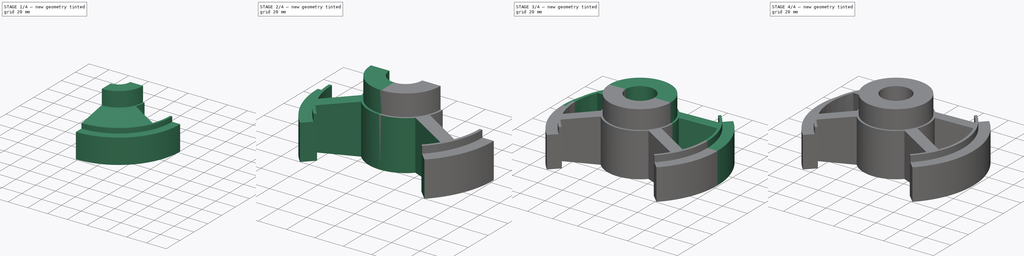
[diagram: build sequence overview — one tinted view per stage of 4, left to right]
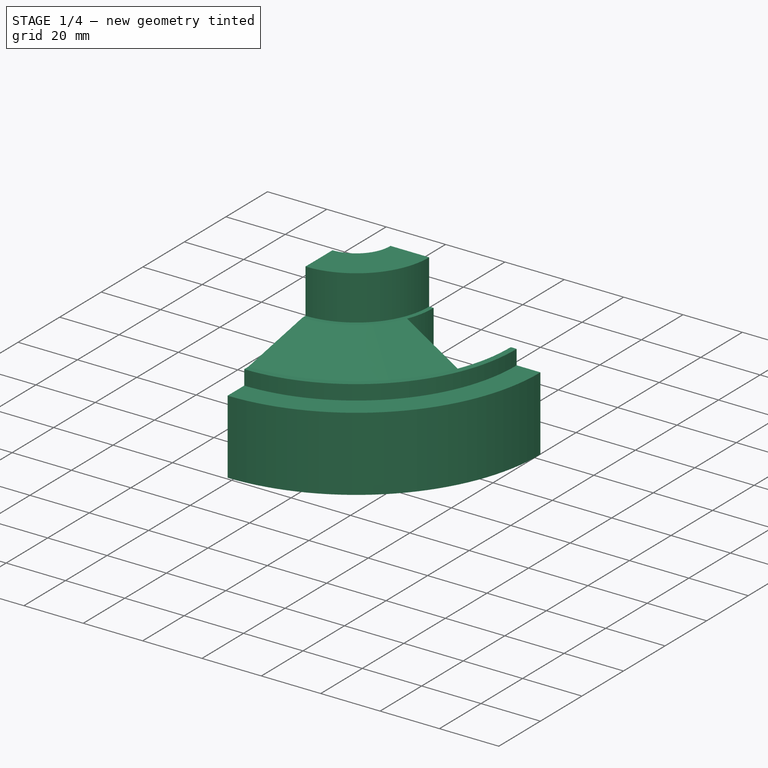
[diagram: stage 1 of 4 — iso view after this stage's code; geometry added in this stage tinted green]
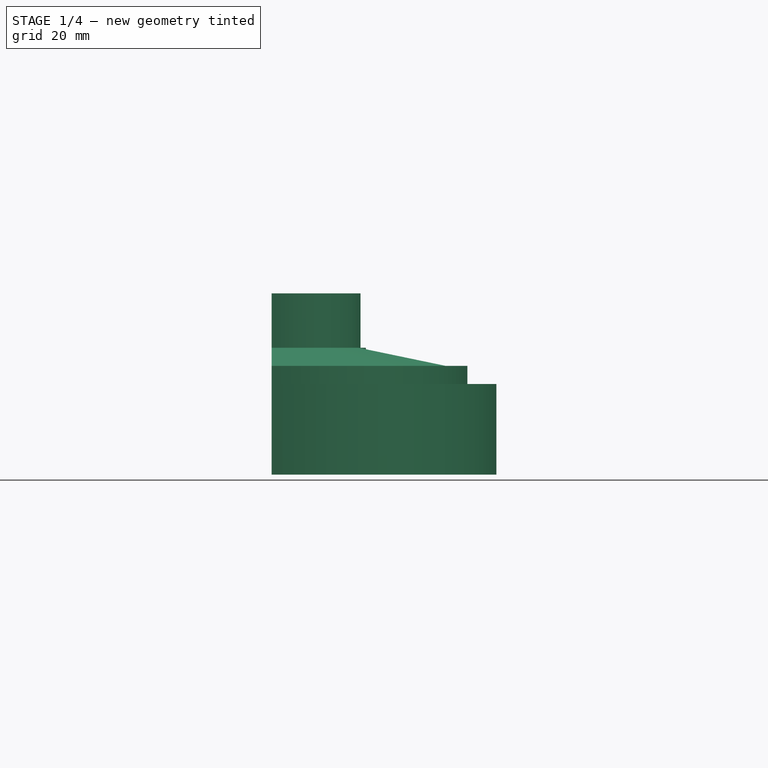
[diagram: stage 1 of 4 — front view after this stage's code; geometry added in this stage tinted green]
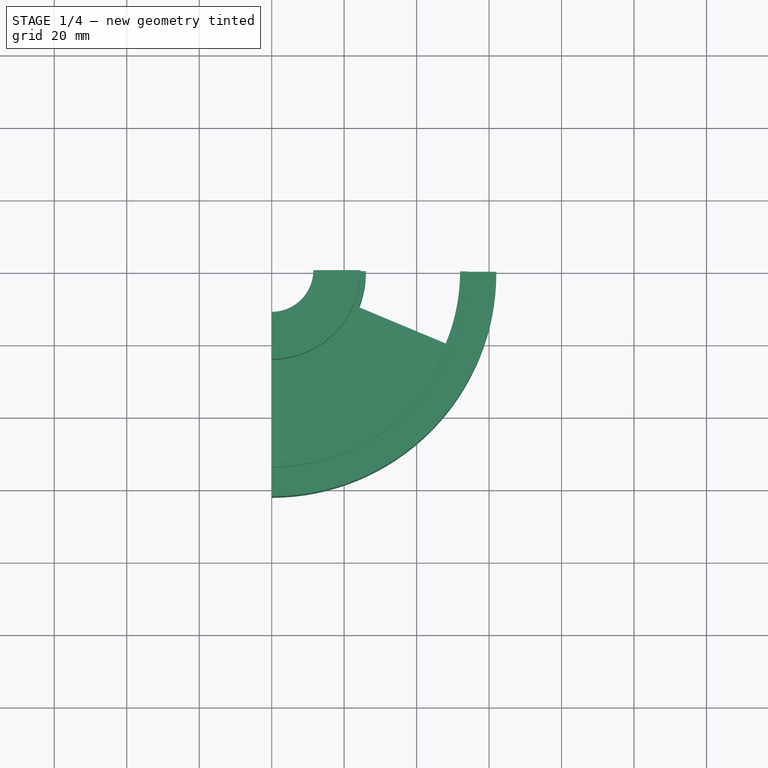
[diagram: stage 1 of 4 — top view after this stage's code; geometry added in this stage tinted green]
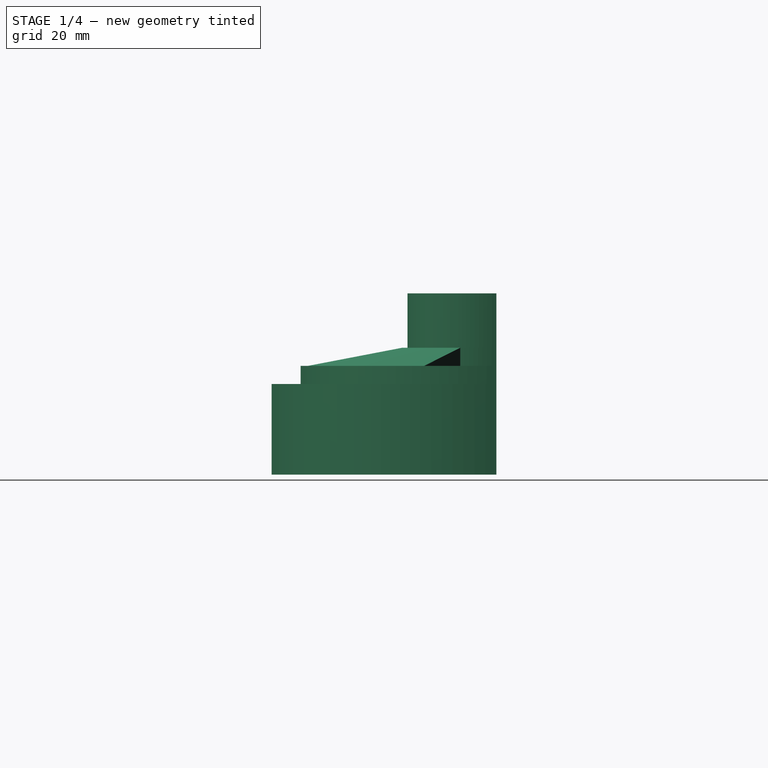
[diagram: stage 1 of 4 — right view after this stage's code; geometry added in this stage tinted green]
FCSTD DOCUMENT  (FreeCAD 0.17R10423 (Git))
Label: 7thExampleSol2
License: CreativeCommons Attribution-NonCommercial
LicenseURL: http://creativecommons.org/licenses/by-nc/4.0/
objects: PartDesign::Body×5, Sketcher::SketchObject×3, Part::Mirroring×3, PartDesign::Boolean×3, PartDesign::Pocket×2, PartDesign::Revolution×1, Part::FeaturePython×1
note: 21 computed .brp shape members not serialized (recipe doc carries the construction recipe); baked Part::Feature solids carry a one-line shape summary decoded from their .brp

FEATURE [Sketcher::SketchObject] Sketch
  MapMode = 5
  Placement = pos=(0,0,0) rot=(1,0,0;1.5708rad)
  Support = -> [XZ_Plane]
  sketch-geometry (10):
    g0: LineSegment StartX=11.5 StartY=0 StartZ=0 EndX=62 EndY=0 EndZ=0
    g1: LineSegment StartX=62 StartY=0 StartZ=0 EndX=62 EndY=25 EndZ=0
    g2: LineSegment StartX=62 StartY=25 StartZ=0 EndX=54 EndY=25 EndZ=0
    g3: LineSegment StartX=54 StartY=25 StartZ=0 EndX=54 EndY=30 EndZ=0
    g4: LineSegment StartX=54 StartY=30 StartZ=0 EndX=52 EndY=30 EndZ=0
    g5: LineSegment StartX=52 StartY=30 StartZ=0 EndX=26 EndY=35 EndZ=0
    g6: LineSegment StartX=26 StartY=35 StartZ=0 EndX=24.5 EndY=35 EndZ=0
    g7: LineSegment StartX=24.5 StartY=35 StartZ=0 EndX=24.5 EndY=50 EndZ=0
    g8: LineSegment StartX=24.5 StartY=50 StartZ=0 EndX=11.5 EndY=50 EndZ=0
    g9: LineSegment StartX=11.5 StartY=50 StartZ=0 EndX=11.5 EndY=0 EndZ=0
  constraints (30):
    c: PointOnObject(g0,g-1)
    c: PointOnObject(g0,g-1)
    c: Coincident(g0,g1)
    c: Vertical(g1)
    c: Coincident(g1,g2)
    c: Horizontal(g2)
    c: Coincident(g2,g3)
    c: Vertical(g3)
    c: Coincident(g3,g4)
    c: Coincident(g4,g5)
    c: Coincident(g6,g7)
    c: Vertical(g7)
    c: Coincident(g7,g8)
    c: Horizontal(g8)
    c: Coincident(g8,g9)
    c: Coincident(g9,g0)
    c: Vertical(g9)
    c: Horizontal(g4)
    c: Horizontal(g6)
    c: Distance(g-1,g1) = 62
    c: Distance(g1,g0) = 25
    c: Distance(g-1,g8) = 50
    c: Distance(g7) = 15
    c: Distance(g0,g4) = 30
    c: DistanceX(g-2,g0) = 11.5
    c: Distance(g-1,g3) = 54
    c: Distance(g4) = 2
    c: Distance(g-1,g7) = 24.5
    c: Coincident(g5,g6)
    c: DistanceX(g-1,g5) = 26
FEATURE [PartDesign::Revolution] Revolution
  Angle = 90
  Axis = (0,0,1)
  Base = (0,0,0)
  Placement = pos=(0,0,0) rot=(1,0,0;1.5708rad)
  Profile = -> Sketch
  ReferenceAxis = -> Sketch [V_Axis]
  Reversed = true
FEATURE [Sketcher::SketchObject] Sketch001
  ExternalGeometry = -> [Revolution]
  MapMode = 5
  Placement = pos=(0,0,0) rot=(0,1,0;3.14159rad)
  Support = -> [XY_Plane]
  sketch-geometry (4):
    g0: LineSegment StartX=-52 StartY=0 StartZ=0 EndX=-26 EndY=0 EndZ=0
    g1: LineSegment StartX=-24.0209 StartY=-9.94977 StartZ=0 EndX=-48.0417 EndY=-19.8995 EndZ=0
    g2: ArcOfCircle CenterX=0 CenterY=0 CenterZ=0 NormalX=0 NormalY=0 NormalZ=1 Radius=52 StartAngle=3.14159 EndAngle=3.53429
    g3: ArcOfCircle CenterX=0 CenterY=0 CenterZ=0 NormalX=0 NormalY=0 NormalZ=1 Radius=26 StartAngle=3.14159 EndAngle=3.53429
  constraints (11):
    c: Horizontal(g0)
    c: Coincident(g2,g1)
    c: Coincident(g2,g0)
    c: Coincident(g3,g1)
    c: Coincident(g3,g0)
    c: Coincident(g2,g3)
    c: Coincident(g2,g-3)
    c: Coincident(g0,g-3)
    c: Coincident(g0,g-4)
    c: Angle(g0,g1) = 0.392699
    c: PointOnObject(g-1,g1)
FEATURE [PartDesign::Pocket] Pocket
  BaseFeature = -> Revolution
  Length = 5
  Placement = pos=(0,0,0) rot=(1,0,0;1.5708rad)
  Profile = -> Sketch001
  Type = 1
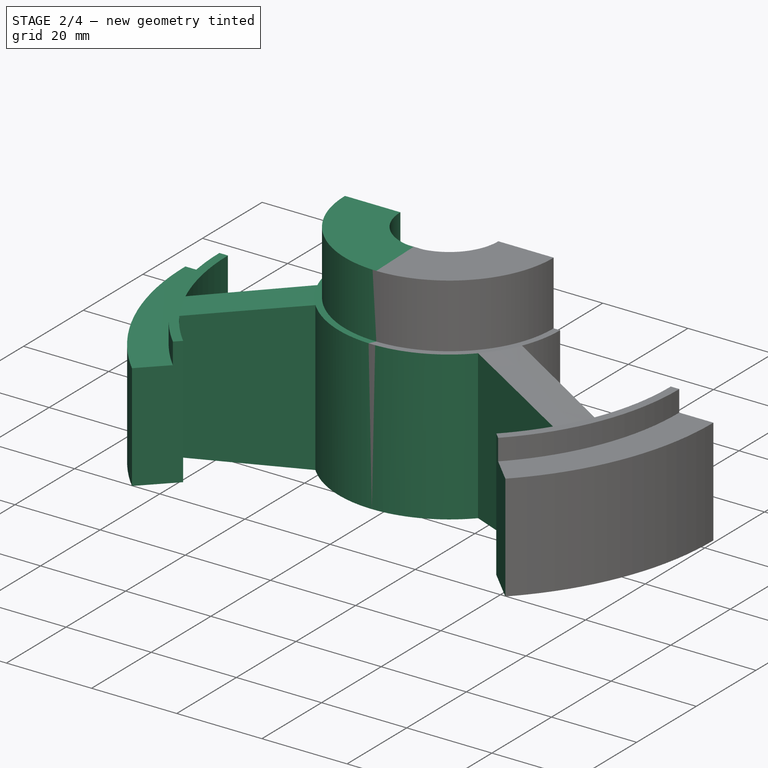
[diagram: stage 2 of 4 — iso view after this stage's code; geometry added in this stage tinted green]
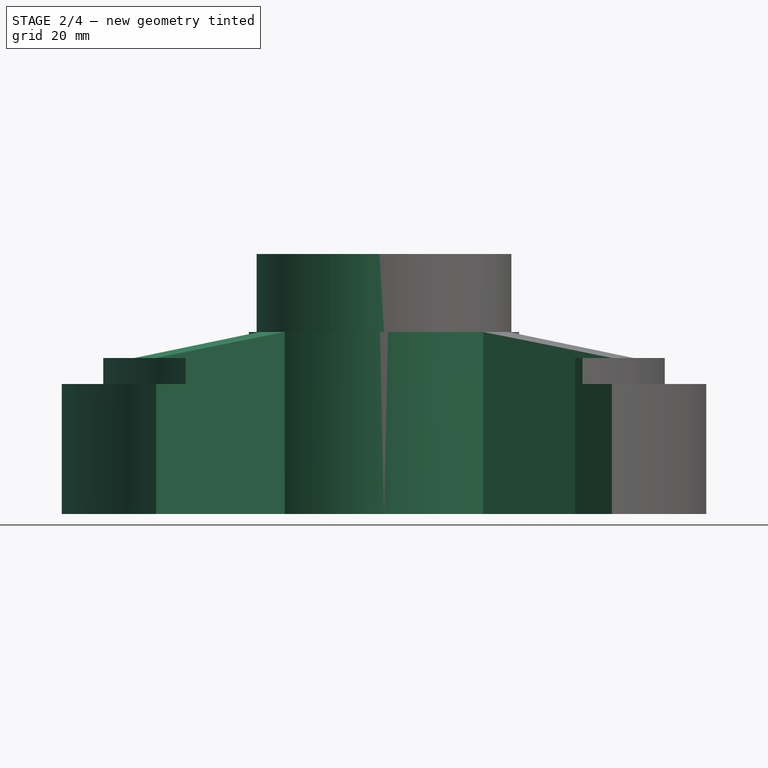
[diagram: stage 2 of 4 — front view after this stage's code; geometry added in this stage tinted green]
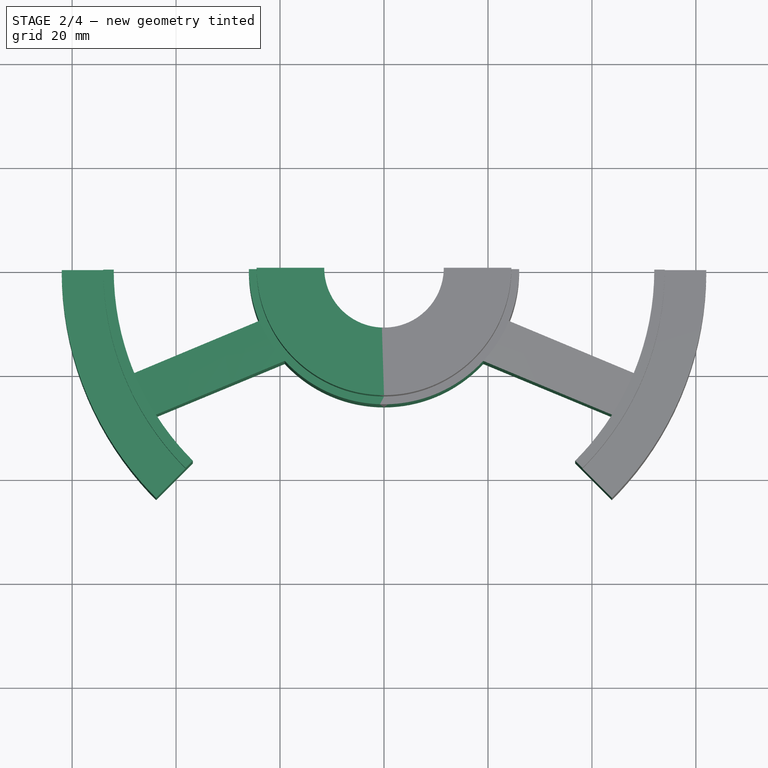
[diagram: stage 2 of 4 — top view after this stage's code; geometry added in this stage tinted green]
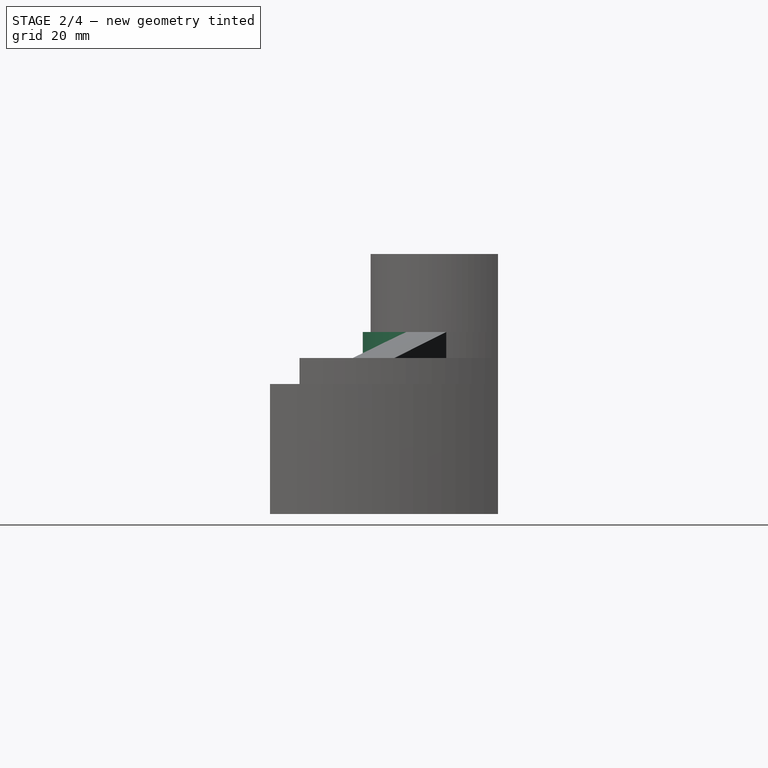
[diagram: stage 2 of 4 — right view after this stage's code; geometry added in this stage tinted green]
FEATURE [Sketcher::SketchObject] Sketch002
  ExternalGeometry = -> [Pocket]
  MapMode = 5
  Support = -> [XY_Plane]
  sketch-geometry (6):
    g0: LineSegment StartX=-0.0001 StartY=-26 StartZ=0 EndX=-0.0001 EndY=-70 EndZ=0
    g1: ArcOfCircle CenterX=0 CenterY=0 CenterZ=0 NormalX=0 NormalY=0 NormalZ=1 Radius=70 StartAngle=4.71239 EndAngle=5.49779
    g2: LineSegment StartX=49.4975 StartY=-49.4975 StartZ=0 EndX=36.7696 EndY=-36.7696 EndZ=0
    g3: ArcOfCircle CenterX=0 CenterY=0 CenterZ=0 NormalX=0 NormalY=0 NormalZ=1 Radius=26 StartAngle=4.71239 EndAngle=5.53702
    g4: LineSegment StartX=19.0917 StartY=-17.6496 StartZ=0 EndX=43.8726 EndY=-27.9141 EndZ=0
    g5: ArcOfCircle CenterX=0 CenterY=0 CenterZ=0 NormalX=0 NormalY=0 NormalZ=1 Radius=52 StartAngle=5.49779 EndAngle=5.71653
  constraints (18):
    c: Radius(g1) = 70
    c: Coincident(g3,g4)
    c: Coincident(g2,g5)
    c: Coincident(g1,g3)
    c: Coincident(g1,g5)
    c: Coincident(g4,g5)
    c: Distance(g2) = 18
    c: Distance(g0) = 44
    c: Coincident(g3,g0)
    c: Coincident(g0,g1)
    c: Coincident(g2,g1)
    c: Distance(g-5,g4) = 9
    c: Parallel(g4,g-5)
    c: Coincident(g1,g-3)
    c: Angle(g-1,g2) = 2.35619
    c: PointOnObject(g-1,g2)
    c: Vertical(g0)
    c: Distance(g-1,g0) = 0.0001
FEATURE [PartDesign::Pocket] Pocket001
  BaseFeature = -> Pocket
  Length = 41
  Placement = pos=(0,0,0) rot=(1,0,0;1.5708rad)
  Profile = -> Sketch002
  Reversed = true
  Type = 0
FEATURE [PartDesign::Body] Body
  Group = -> [Sketch,Revolution,Sketch001,Pocket,Sketch002,Pocket001]
  Origin = -> BodyOrigin
  Tip = -> Pocket001
FEATURE [Part::Mirroring] Part__Mirroring  label="Pocket001 (Mirror #1)"
  Base = (0,0,0)
  Normal = (1,0,0)
  Source = -> Pocket001
FEATURE [PartDesign::Boolean] Boolean
  BaseFeature = -> Part__Mirroring
  Bodies = -> [Body]
  Type = 0
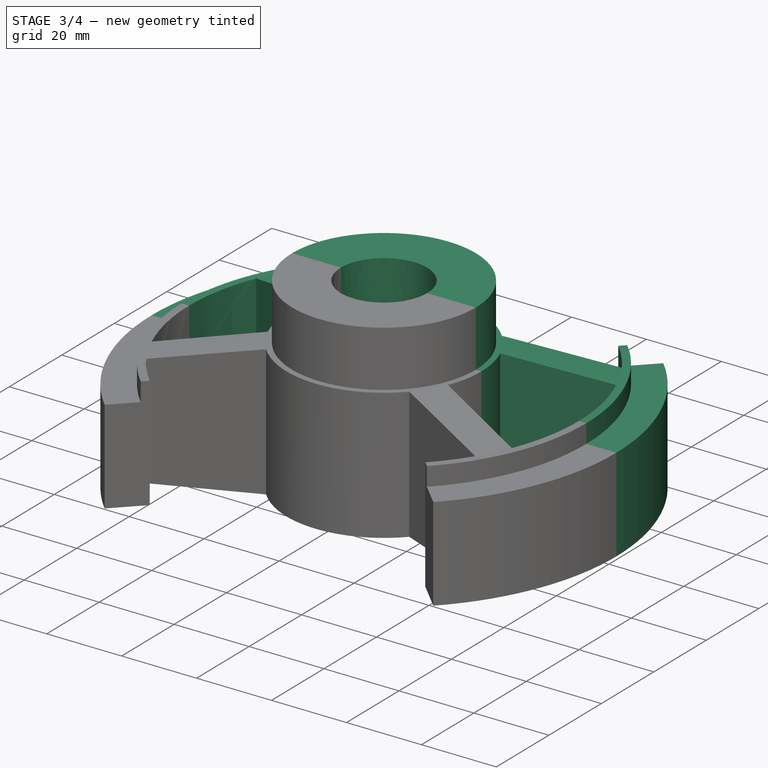
[diagram: stage 3 of 4 — iso view after this stage's code; geometry added in this stage tinted green]
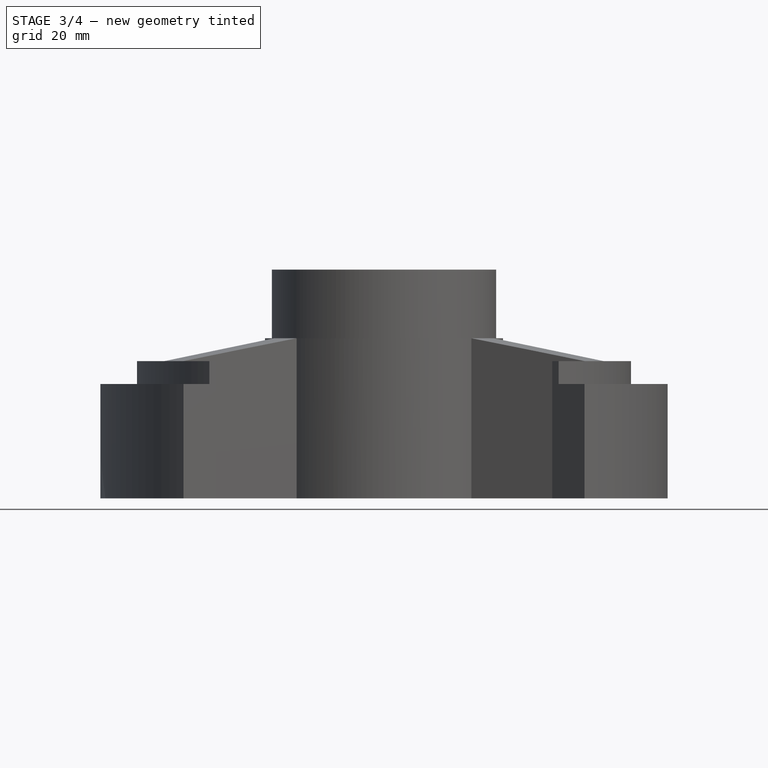
[diagram: stage 3 of 4 — front view after this stage's code; geometry added in this stage tinted green]
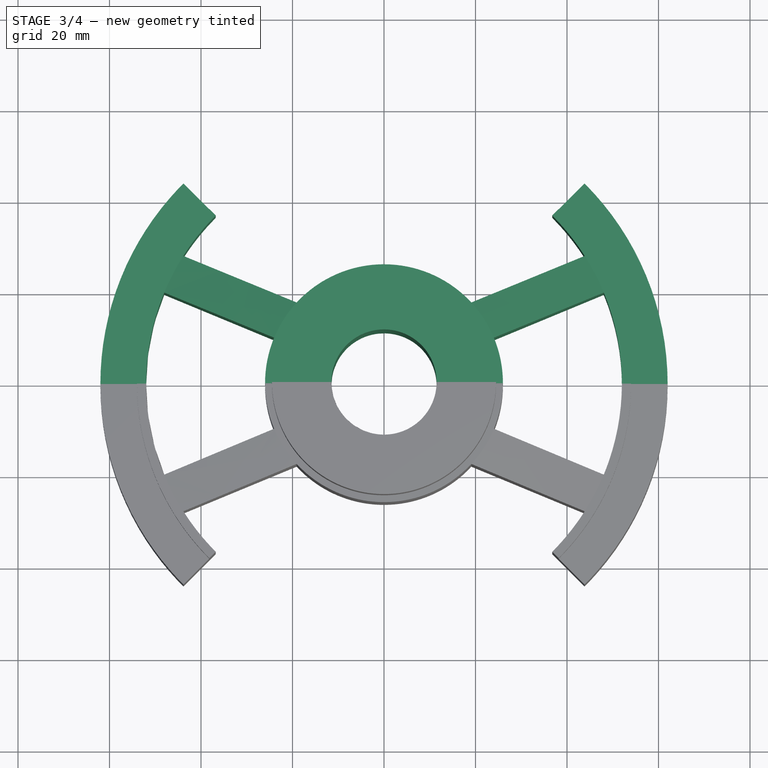
[diagram: stage 3 of 4 — top view after this stage's code; geometry added in this stage tinted green]
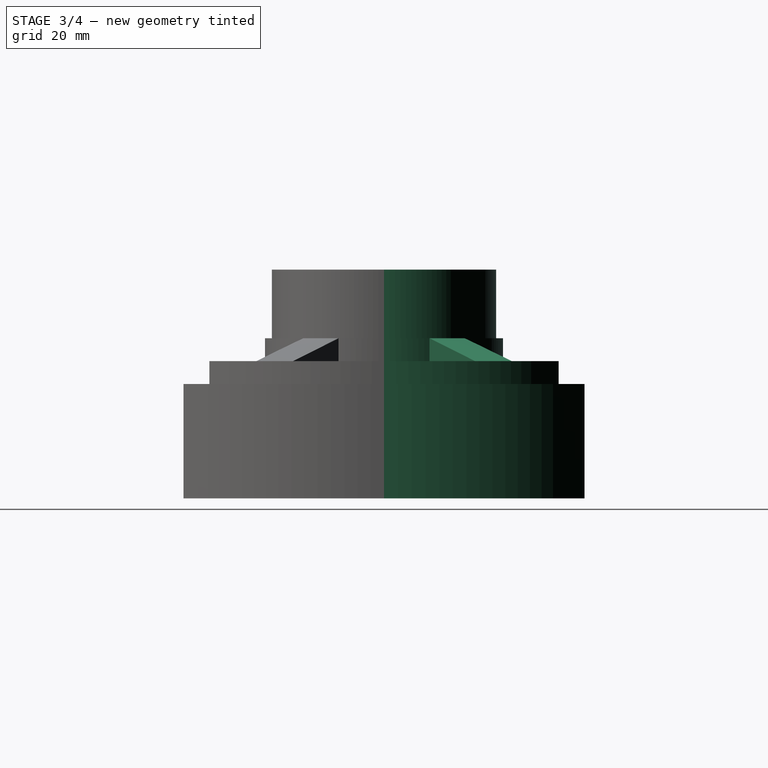
[diagram: stage 3 of 4 — right view after this stage's code; geometry added in this stage tinted green]
FEATURE [Part::Mirroring] Part__Mirroring001  label="Pocket001 (Mirror #2)"
  Base = (0,0,0)
  Normal = (0,1,0)
  Source = -> Pocket001
FEATURE [Part::Mirroring] Part__Mirroring002  label="Pocket001 (Mirror #3)"
  Base = (-31,1.90735e-06,25)
  Normal = (0,1,-1.19209e-07)
  Source = -> Part__Mirroring
FEATURE [PartDesign::Body] Body003
  BaseFeature = -> Part__Mirroring
  Group = -> [Boolean]
  Origin = -> Body003Origin
  Tip = -> Boolean
FEATURE [PartDesign::Boolean] Boolean001
  BaseFeature = -> Part__Mirroring002
  Bodies = -> [Body003]
  Type = 0
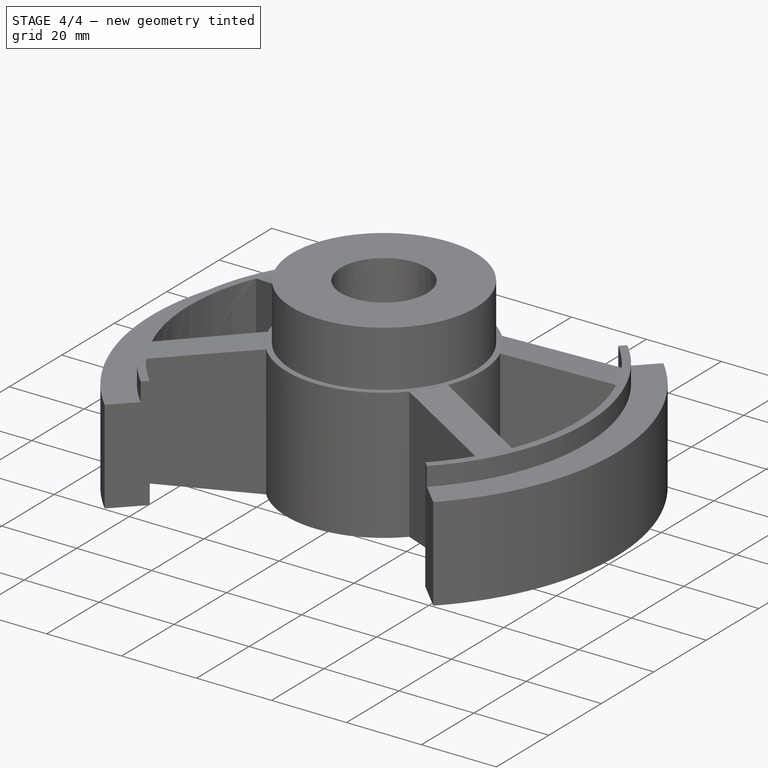
[diagram: stage 4 of 4 — iso view after this stage's code; geometry added in this stage tinted green]
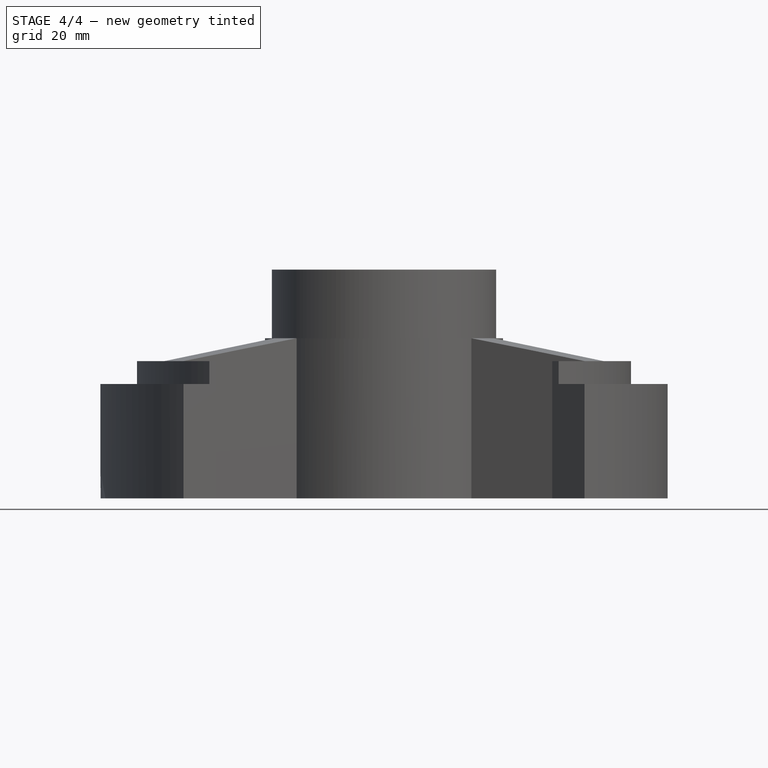
[diagram: stage 4 of 4 — front view after this stage's code; geometry added in this stage tinted green]
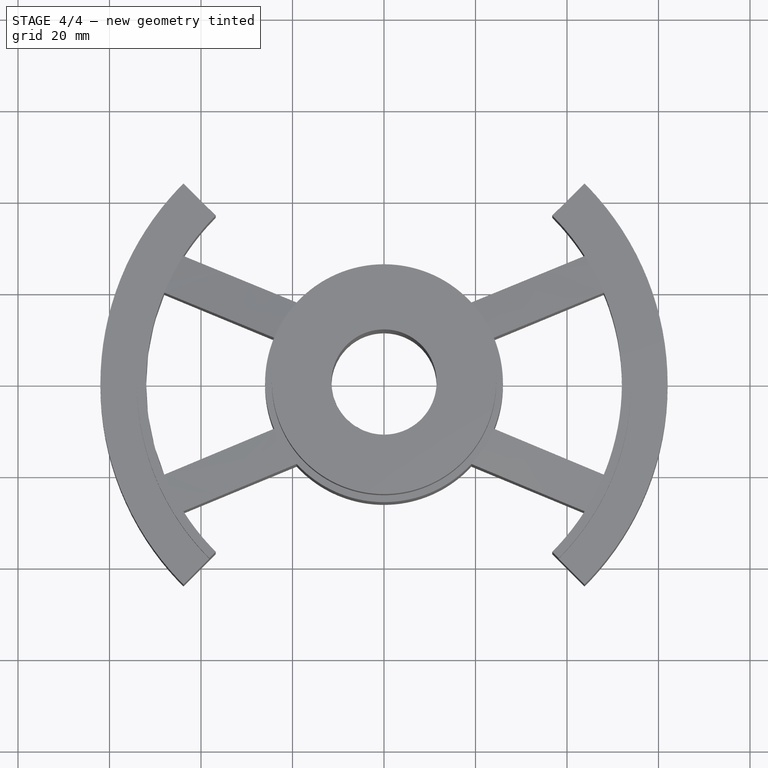
[diagram: stage 4 of 4 — top view after this stage's code; geometry added in this stage tinted green]
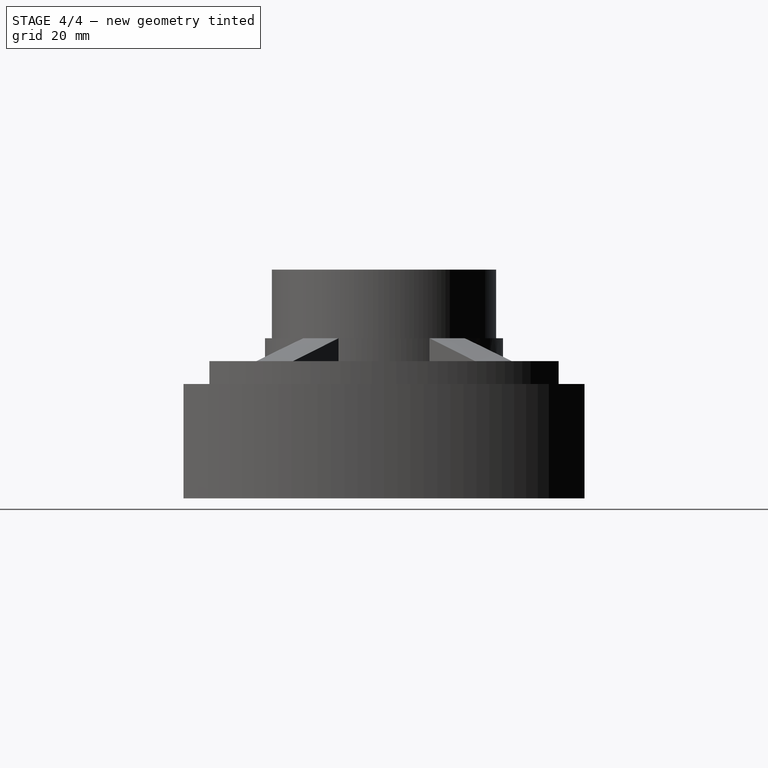
[diagram: stage 4 of 4 — right view after this stage's code; geometry added in this stage tinted green]
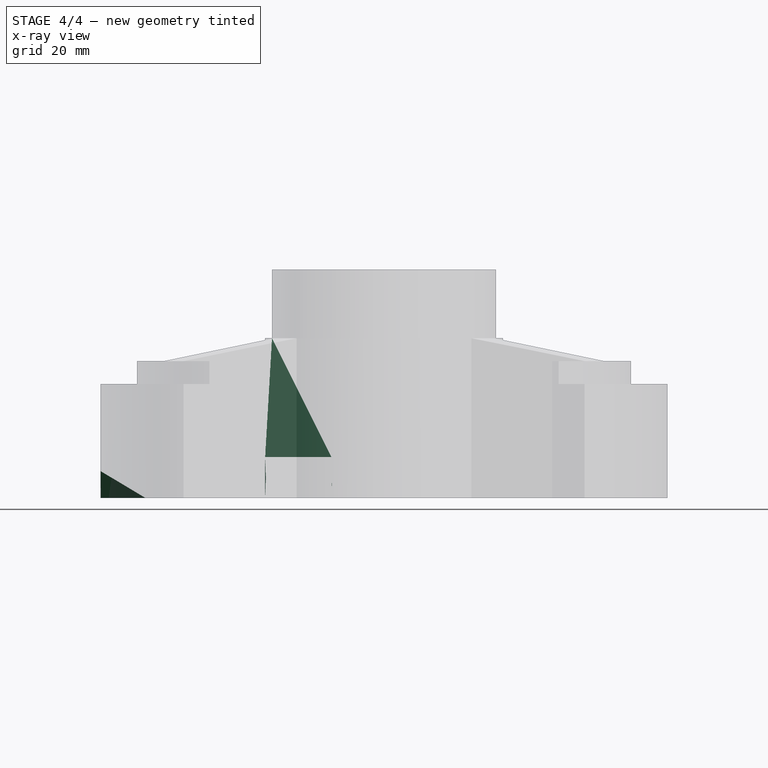
[diagram: stage 4 of 4 — x-ray composite at the front view; earlier geometry ghosted, this stage's added geometry solid]
FEATURE [PartDesign::Body] Body002
  BaseFeature = -> Part__Mirroring002
  Group = -> [Boolean001]
  Origin = -> Body002Origin
  Tip = -> Boolean001
FEATURE [PartDesign::Boolean] Boolean002
  BaseFeature = -> Part__Mirroring001
  Bodies = -> [Body002]
  Type = 0
FEATURE [PartDesign::Body] Body001
  BaseFeature = -> Part__Mirroring001
  Group = -> [Boolean002]
  Origin = -> Body001Origin
  Tip = -> Boolean002
FEATURE [Part::FeaturePython] refine  label="refine_Body001"  # WARN: FeaturePython — macro-defined, semantics opaque (R4)
  Base = -> Body001
FEATURE [PartDesign::Body] Body004
  BaseFeature = -> refine
  Origin = -> Body004Origin
  Tip = -> refine
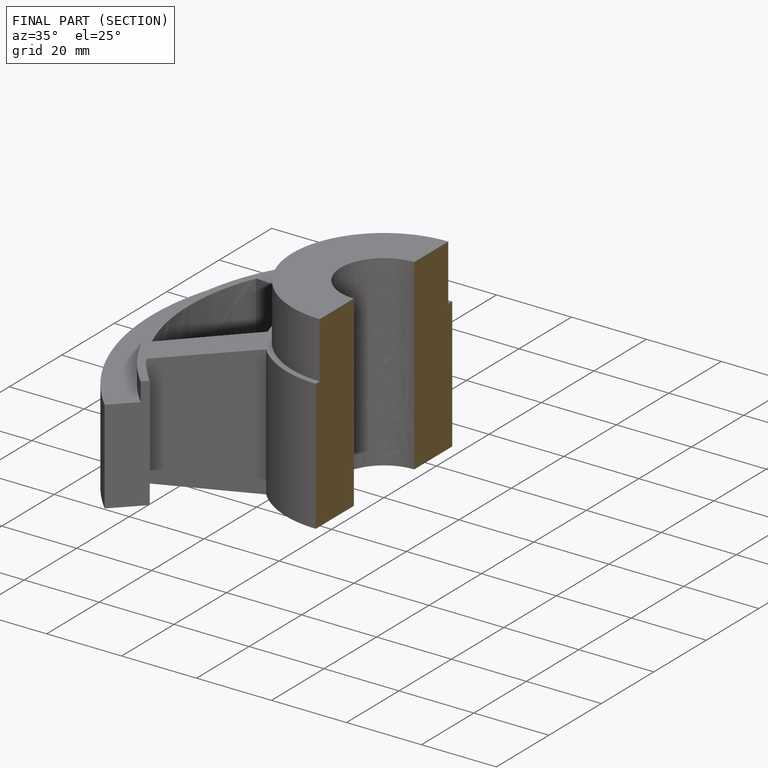
[diagram: finished part — half-section view (interior)]
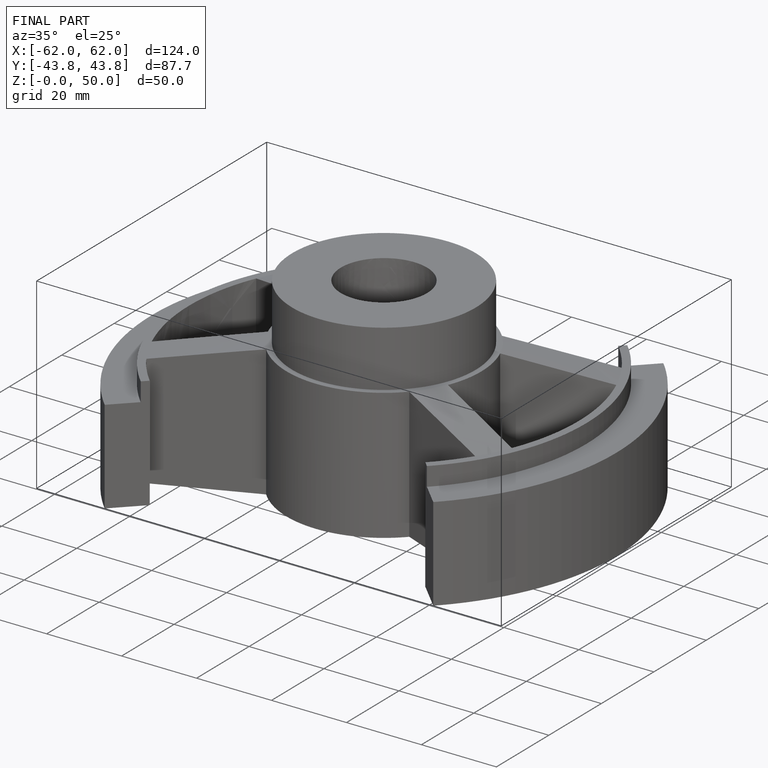
[diagram: finished part — iso view with bounding-box wireframe]
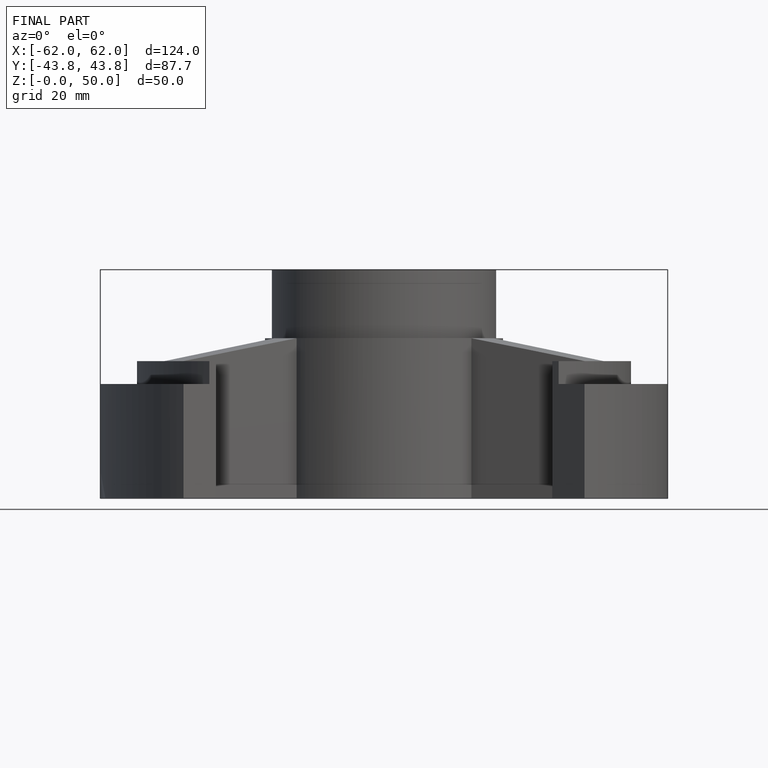
[diagram: finished part — front view with bounding-box wireframe]
